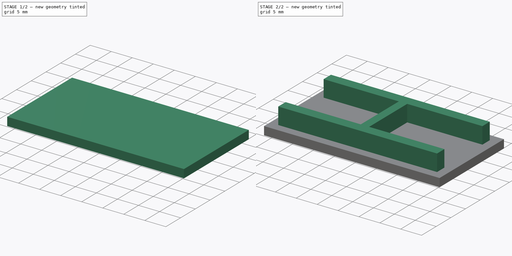
[diagram: build sequence overview — one tinted view per stage of 2, left to right]
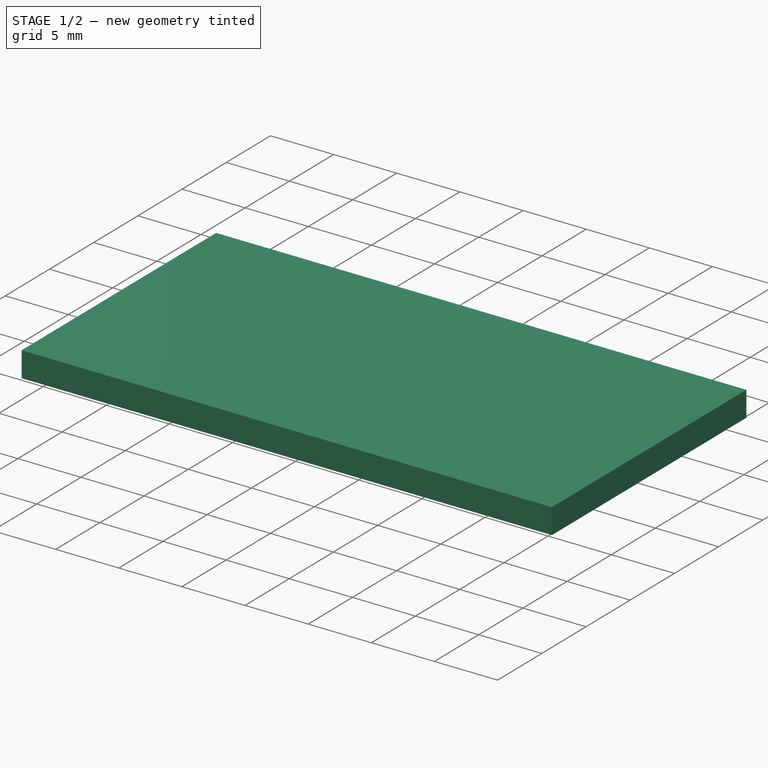
[diagram: stage 1 of 2 — iso view after this stage's code; geometry added in this stage tinted green]
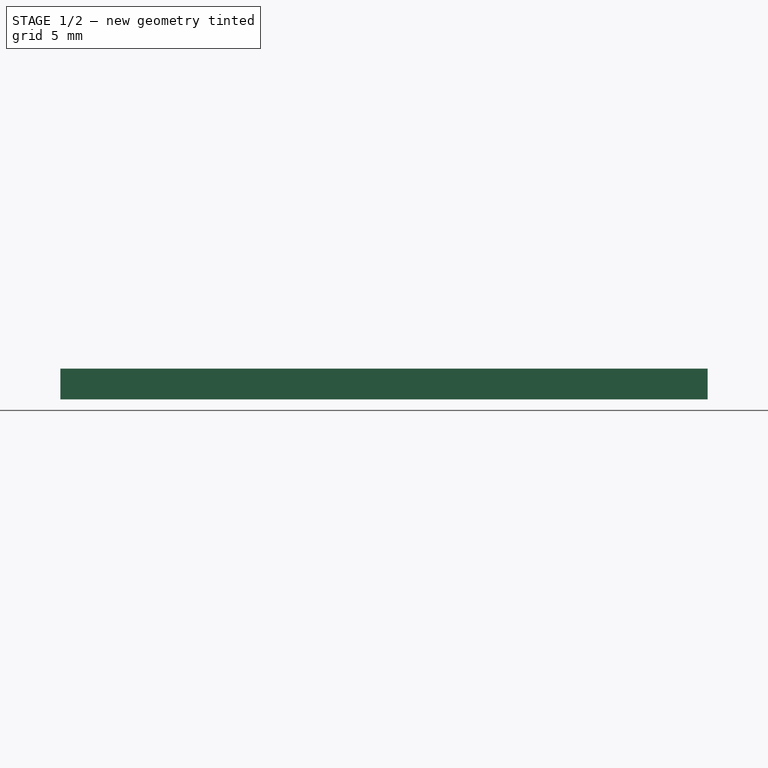
[diagram: stage 1 of 2 — front view after this stage's code; geometry added in this stage tinted green]
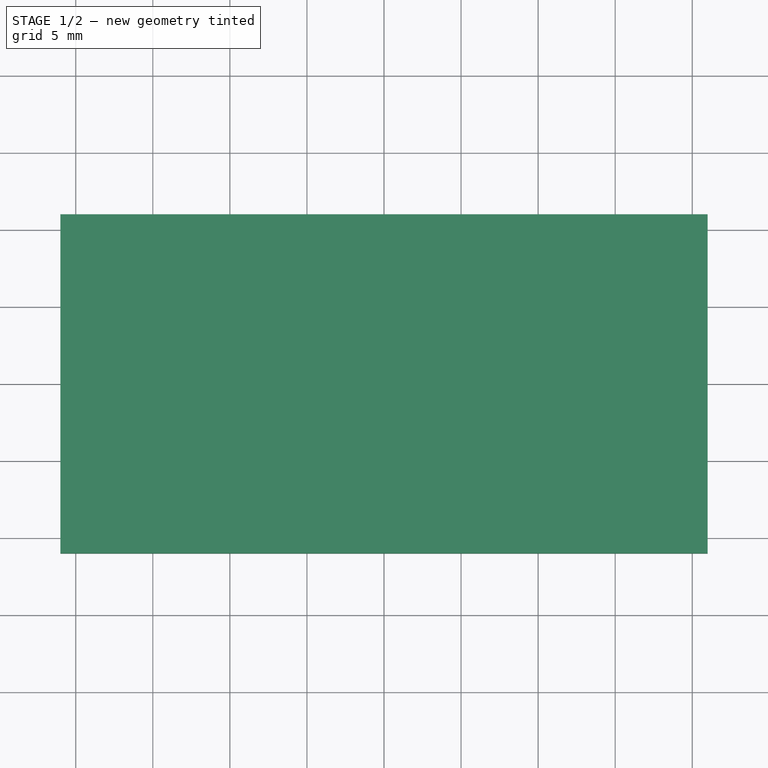
[diagram: stage 1 of 2 — top view after this stage's code; geometry added in this stage tinted green]
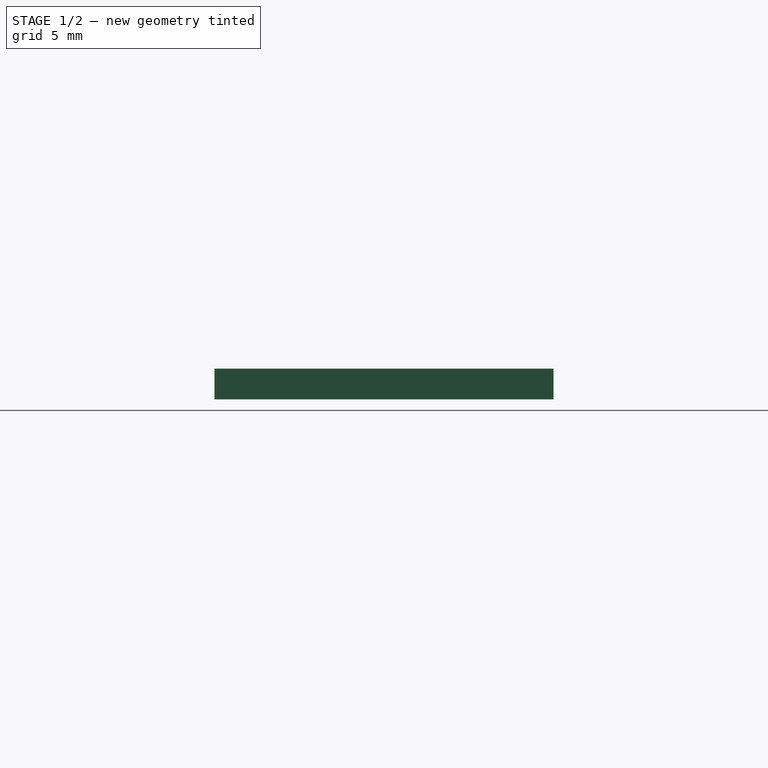
[diagram: stage 1 of 2 — right view after this stage's code; geometry added in this stage tinted green]
FCSTD DOCUMENT  (FreeCAD 0.18.4R)
Label: usb_down_case
License: All rights reserved
LicenseURL: http://en.wikipedia.org/wiki/All_rights_reserved
objects: Sketcher::SketchObject×2, PartDesign::Pad×2, PartDesign::Body×1
note: 7 computed .brp shape members not serialized (recipe doc carries the construction recipe); baked Part::Feature solids carry a one-line shape summary decoded from their .brp

FEATURE [Sketcher::SketchObject] Sketch
  MapMode = 5
  Support = -> [XY_Plane]
  sketch-geometry (4):
    g0: LineSegment StartX=-21 StartY=11 StartZ=0 EndX=21 EndY=11 EndZ=0
    g1: LineSegment StartX=21 StartY=11 StartZ=0 EndX=21 EndY=-11 EndZ=0
    g2: LineSegment StartX=21 StartY=-11 StartZ=0 EndX=-21 EndY=-11 EndZ=0
    g3: LineSegment StartX=-21 StartY=-11 StartZ=0 EndX=-21 EndY=11 EndZ=0
  constraints (10):
    c: Coincident(g0,g1)
    c: Coincident(g1,g2)
    c: Coincident(g2,g3)
    c: Coincident(g3,g0)
    c: Horizontal(g2)
    c: Vertical(g1)
    c: Symmetric(g0,g0,g-2)
    c: Symmetric(g0,g2,g-1)
    c: DistanceX(g0,g0) = 42
    c: DistanceY(g3,g3) = 22
FEATURE [PartDesign::Pad] Pad
  Length = 2
  Length2 = 100
  Profile = -> Sketch
  Type = 0
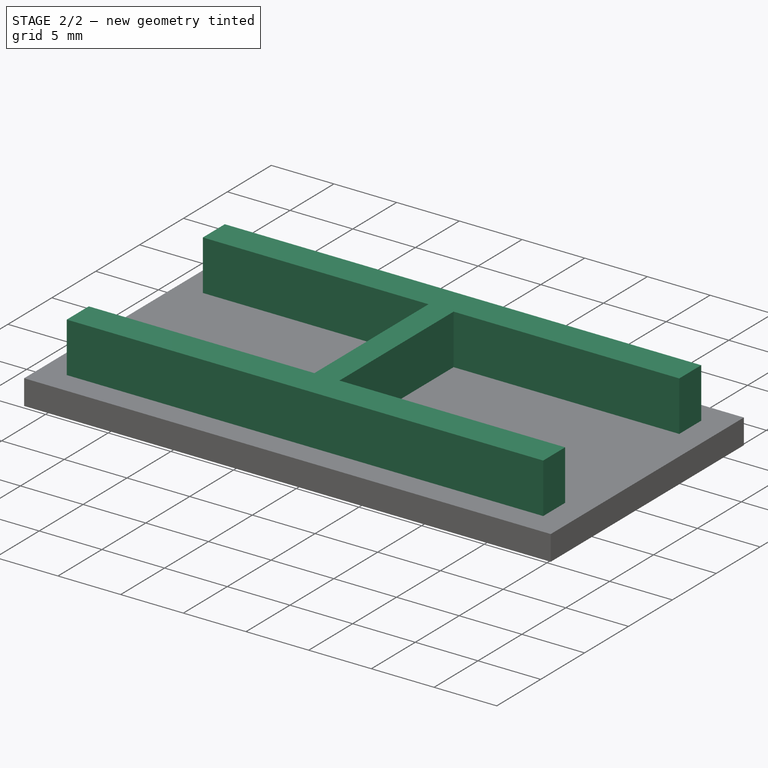
[diagram: stage 2 of 2 — iso view after this stage's code; geometry added in this stage tinted green]
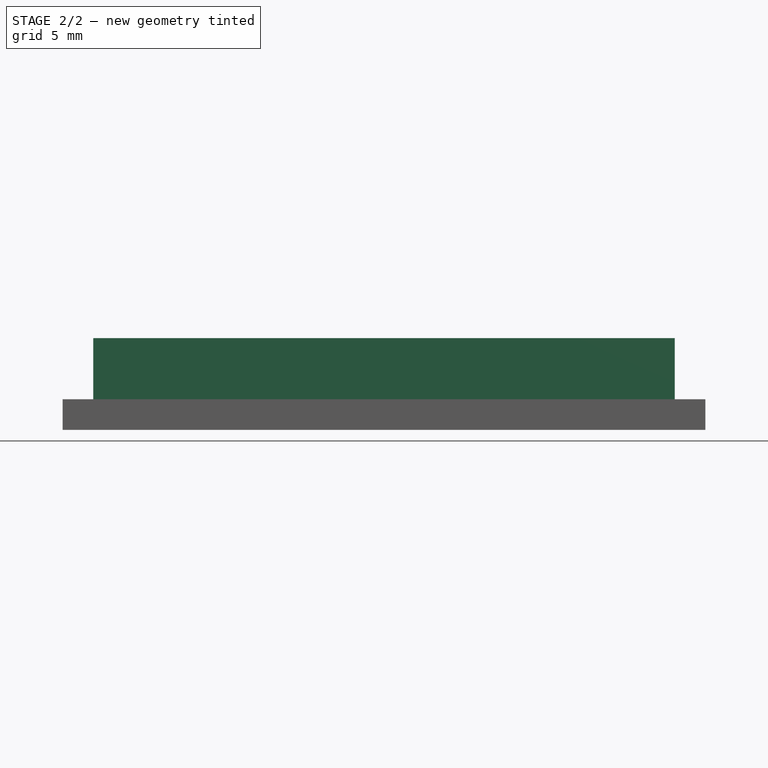
[diagram: stage 2 of 2 — front view after this stage's code; geometry added in this stage tinted green]
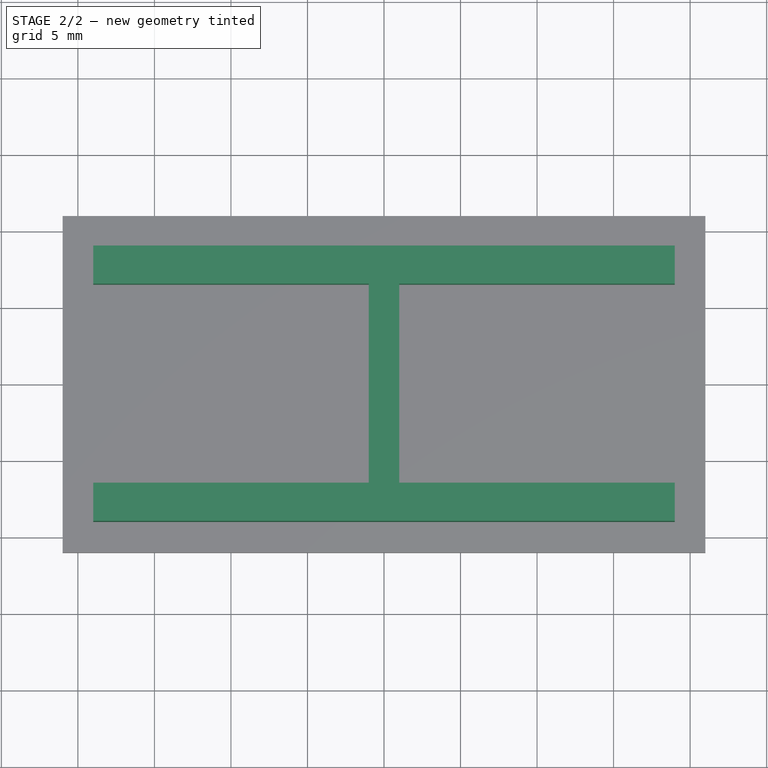
[diagram: stage 2 of 2 — top view after this stage's code; geometry added in this stage tinted green]
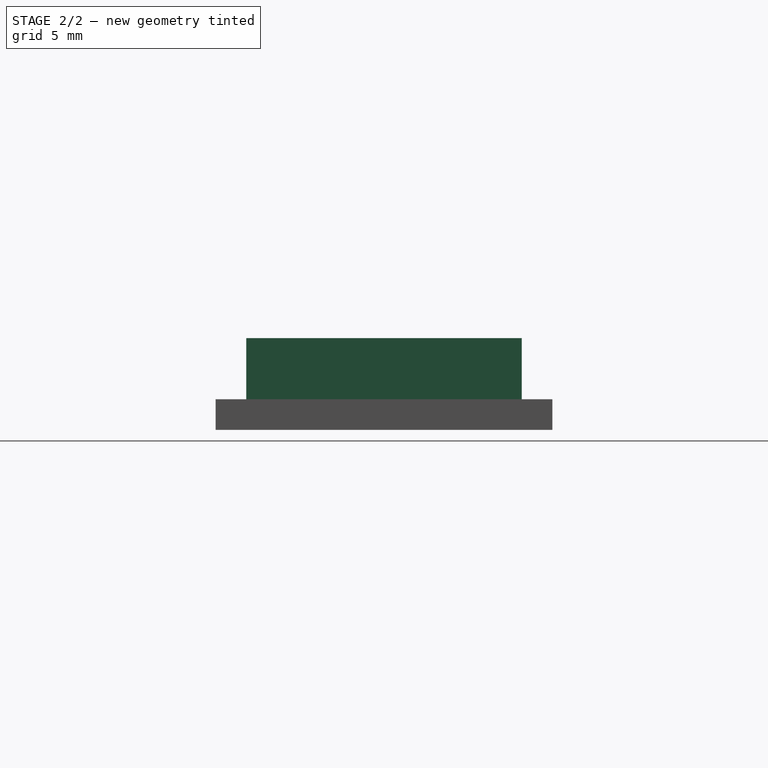
[diagram: stage 2 of 2 — right view after this stage's code; geometry added in this stage tinted green]
FEATURE [Sketcher::SketchObject] Sketch001
  ExternalGeometry = -> [Pad]
  MapMode = 5
  Placement = pos=(0,0,2) rot=(0,0,1;0rad)
  Support = -> [Pad]
  sketch-geometry (12):
    g0: LineSegment StartX=-19 StartY=9 StartZ=0 EndX=19 EndY=9 EndZ=0
    g1: LineSegment StartX=19 StartY=9 StartZ=0 EndX=19 EndY=6.5 EndZ=0
    g2: LineSegment StartX=-19 StartY=6.5 StartZ=0 EndX=-19 EndY=9 EndZ=0
    g3: LineSegment StartX=19 StartY=-6.5 StartZ=0 EndX=19 EndY=-9 EndZ=0
    g4: LineSegment StartX=19 StartY=-9 StartZ=0 EndX=-19 EndY=-9 EndZ=0
    g5: LineSegment StartX=-19 StartY=-9 StartZ=0 EndX=-19 EndY=-6.5 EndZ=0
    g6: LineSegment StartX=-19 StartY=6.5 StartZ=0 EndX=-1 EndY=6.5 EndZ=0
    g7: LineSegment StartX=-1 StartY=6.5 StartZ=0 EndX=-1 EndY=-6.5 EndZ=0
    g8: LineSegment StartX=-1 StartY=-6.5 StartZ=0 EndX=-19 EndY=-6.5 EndZ=0
    g9: LineSegment StartX=19 StartY=-6.5 StartZ=0 EndX=1 EndY=-6.5 EndZ=0
    g10: LineSegment StartX=1 StartY=-6.5 StartZ=0 EndX=1 EndY=6.5 EndZ=0
    g11: LineSegment StartX=1 StartY=6.5 StartZ=0 EndX=19 EndY=6.5 EndZ=0
  constraints (35):
    c: Coincident(g0,g1)
    c: Coincident(g2,g0)
    c: Horizontal(g0)
    c: Vertical(g1)
    c: Vertical(g2)
    c: Coincident(g3,g4)
    c: Coincident(g4,g5)
    c: Horizontal(g4)
    c: Vertical(g3)
    c: Vertical(g5)
    c: Distance(g0,g-4) = 2
    c: Distance(g0,g-3) = 2
    c: Distance(g4,g-6) = 2
    c: Distance(g5,g-4) = 2
    c: DistanceY(g3,g3) = 2.5
    c: Distance(g1,g-5) = 2
    c: Distance(g3,g-5) = 2
    c: Coincident(g2,g6)
    c: Horizontal(g6)
    c: Coincident(g6,g7)
    c: Vertical(g7)
    c: Coincident(g7,g8)
    c: Coincident(g8,g5)
    c: Horizontal(g8)
    c: Horizontal(g9)
    c: Coincident(g9,g10)
    c: Vertical(g10)
    c: Coincident(g10,g11)
    c: Coincident(g11,g1)
    c: Horizontal(g11)
    c: DistanceY(g1,g1) = 2.5
    c: DistanceY(g5,g5) = 2.5
    c: Distance(g7,g9) = 2
    c: Symmetric(g6,g10,g-2)
    c: Coincident(g9,g3)
FEATURE [PartDesign::Pad] Pad001
  BaseFeature = -> Pad
  Length = 4
  Length2 = 100
  Profile = -> Sketch001
  Type = 0
FEATURE [PartDesign::Body] Body
  Group = -> [Sketch,Pad,Sketch001,Pad001]
  Origin = -> Origin
  Tip = -> Pad001
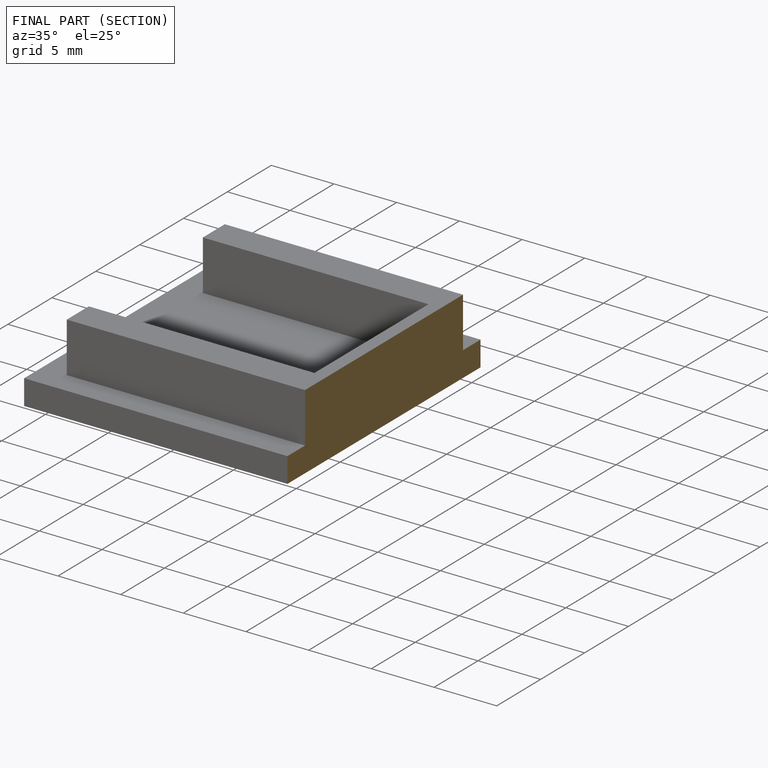
[diagram: finished part — half-section view (interior)]
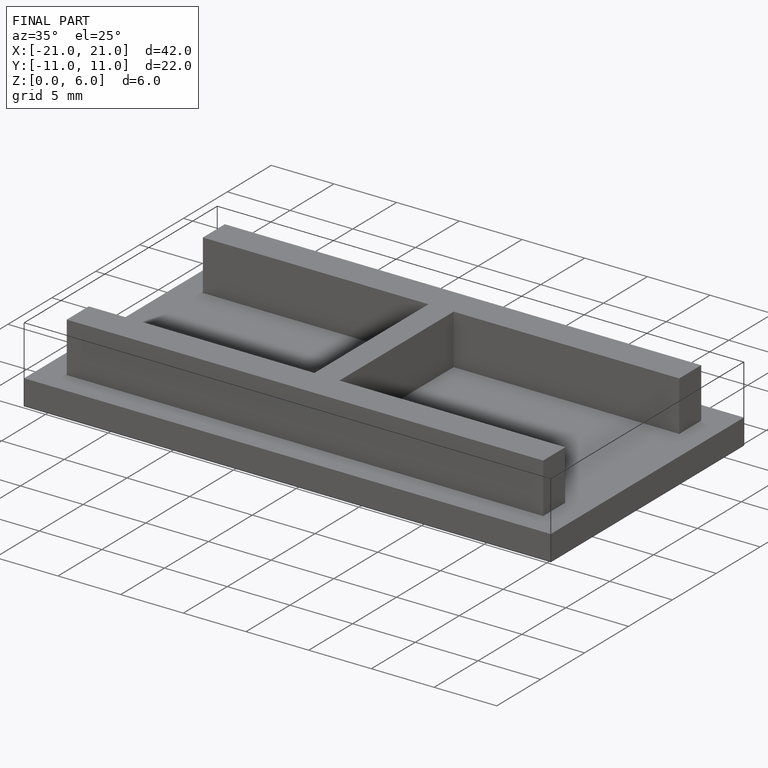
[diagram: finished part — iso view with bounding-box wireframe]
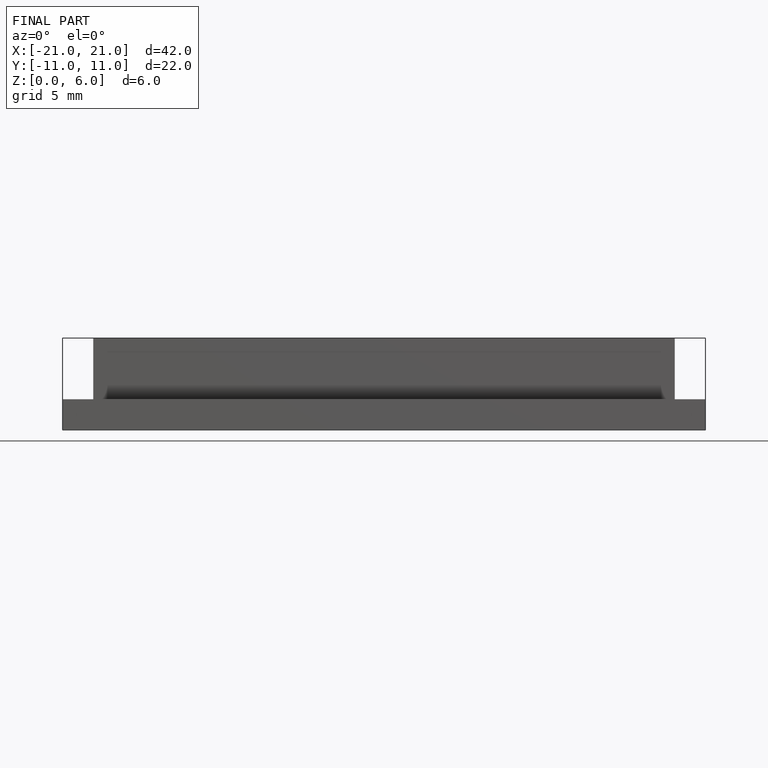
[diagram: finished part — front view with bounding-box wireframe]
